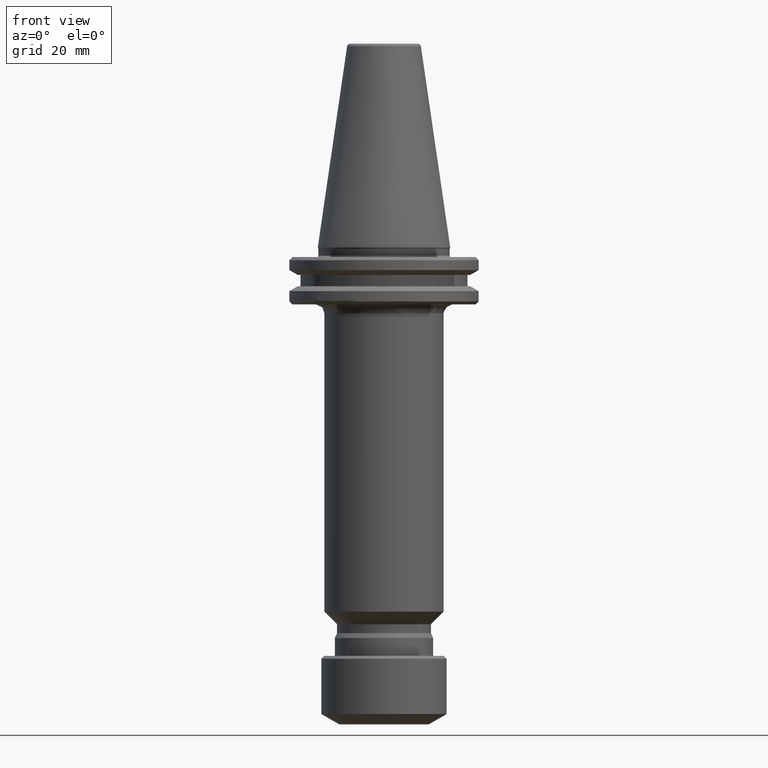
[diagram: clean part render]
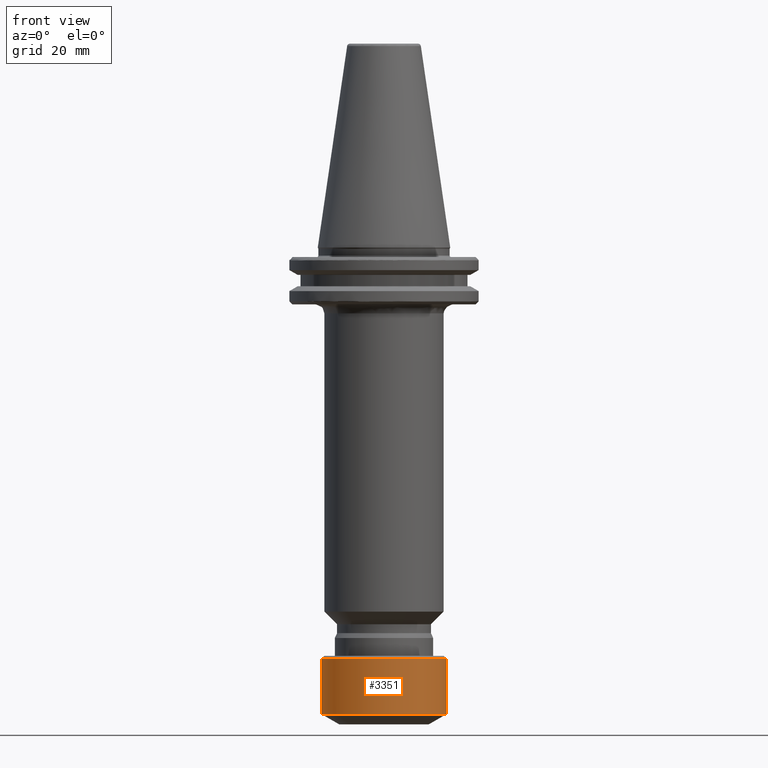
[diagram: same view with one face highlighted and labeled with its STEP entity id]
A machine part, front view. The second image highlights one B-rep face of the part: STEP entity #3351.
In plain terms, the highlighted cylindrical surface (partial cylindrical patch) has radius 21 mm, axis along (0, 0, 1).
Its self-contained STEP definition (entity closure, byte-faithful):
#57 = EDGE_CURVE ( 'NONE', #207, #1992, #2281, .T. ) ;
#72 = ORIENTED_EDGE ( 'NONE', *, *, #57, .T. ) ;
#106 = ORIENTED_EDGE ( 'NONE', *, *, #2960, .F. ) ;
#207 = VERTEX_POINT ( 'NONE', #1301 ) ;
#212 = CARTESIAN_POINT ( 'NONE',  ( -21.00000000000000000, 2.571758278209442100E-015, -138.0000000000000000 ) ) ;
#725 = CIRCLE ( 'NONE', #1024, 20.99999999999999600 ) ;
#1014 = CARTESIAN_POINT ( 'NONE',  ( 0.0000000000000000000, 0.0000000000000000000, 0.0000000000000000000 ) ) ;
#1024 = AXIS2_PLACEMENT_3D ( 'NONE', #1196, #3068, #1470 ) ;
#1173 = DIRECTION ( 'NONE',  ( 0.0000000000000000000, 0.0000000000000000000, 1.000000000000000000 ) ) ;
#1180 = DIRECTION ( 'NONE',  ( 0.0000000000000000000, 0.0000000000000000000, 1.000000000000000000 ) ) ;
#1189 = LINE ( 'NONE', #2002, #2542 ) ;
#1196 = CARTESIAN_POINT ( 'NONE',  ( 0.0000000000000000000, 0.0000000000000000000, -138.0000000000000000 ) ) ;
#1301 = CARTESIAN_POINT ( 'NONE',  ( -21.00000000000001100, 2.571758278209443200E-015, -156.5358983848622100 ) ) ;
#1365 = VECTOR ( 'NONE', #1173, 1000.000000000000000 ) ;
#1420 = CARTESIAN_POINT ( 'NONE',  ( 0.0000000000000000000, 0.0000000000000000000, -156.5358983848622100 ) ) ;
#1470 = DIRECTION ( 'NONE',  ( -1.000000000000000000, 0.0000000000000000000, 0.0000000000000000000 ) ) ;
#1569 = FACE_OUTER_BOUND ( 'NONE', #1832, .T. ) ;
#1614 = DIRECTION ( 'NONE',  ( 0.0000000000000000000, 0.0000000000000000000, 1.000000000000000000 ) ) ;
#1745 = CARTESIAN_POINT ( 'NONE',  ( 21.00000000000001100, 0.0000000000000000000, -156.5358983848622100 ) ) ;
#1832 = EDGE_LOOP ( 'NONE', ( #106, #72, #2951, #2414 ) ) ;
#1969 = AXIS2_PLACEMENT_3D ( 'NONE', #1420, #1614, #3392 ) ;
#1992 = VERTEX_POINT ( 'NONE', #1745 ) ;
#2002 = CARTESIAN_POINT ( 'NONE',  ( -21.00000000000000000, 2.571758278209441700E-015, 0.0000000000000000000 ) ) ;
#2083 = LINE ( 'NONE', #2805, #1365 ) ;
#2106 = DIRECTION ( 'NONE',  ( 0.0000000000000000000, 0.0000000000000000000, 1.000000000000000000 ) ) ;
#2160 = VERTEX_POINT ( 'NONE', #2687 ) ;
#2197 = CYLINDRICAL_SURFACE ( 'NONE', #2875, 21.00000000000000000 ) ;
#2281 = CIRCLE ( 'NONE', #1969, 21.00000000000000000 ) ;
#2414 = ORIENTED_EDGE ( 'NONE', *, *, #2830, .F. ) ;
#2542 = VECTOR ( 'NONE', #1180, 1000.000000000000000 ) ;
#2687 = CARTESIAN_POINT ( 'NONE',  ( 21.00000000000000000, 0.0000000000000000000, -138.0000000000000000 ) ) ;
#2805 = CARTESIAN_POINT ( 'NONE',  ( 21.00000000000000000, 0.0000000000000000000, 0.0000000000000000000 ) ) ;
#2830 = EDGE_CURVE ( 'NONE', #3274, #2160, #725, .T. ) ;
#2845 = EDGE_CURVE ( 'NONE', #1992, #2160, #2083, .T. ) ;
#2875 = AXIS2_PLACEMENT_3D ( 'NONE', #1014, #2106, #3163 ) ;
#2951 = ORIENTED_EDGE ( 'NONE', *, *, #2845, .T. ) ;
#2960 = EDGE_CURVE ( 'NONE', #207, #3274, #1189, .T. ) ;
#3068 = DIRECTION ( 'NONE',  ( -0.0000000000000000000, -0.0000000000000000000, 1.000000000000000000 ) ) ;
#3163 = DIRECTION ( 'NONE',  ( 1.000000000000000000, 0.0000000000000000000, 0.0000000000000000000 ) ) ;
#3274 = VERTEX_POINT ( 'NONE', #212 ) ;
#3351 = ADVANCED_FACE ( 'NONE', ( #1569 ), #2197, .T. ) ;
#3392 = DIRECTION ( 'NONE',  ( 1.000000000000000000, 0.0000000000000000000, 0.0000000000000000000 ) ) ;